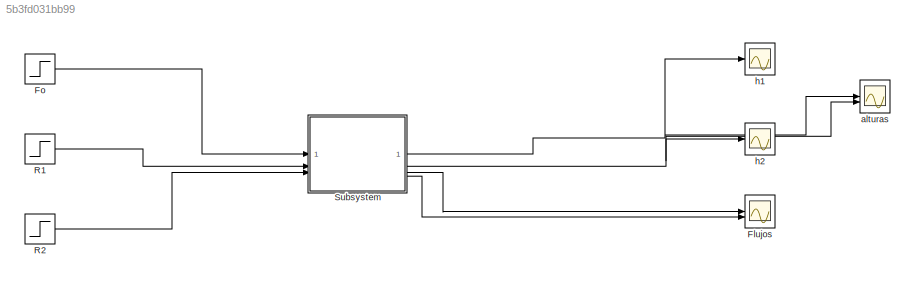
MODEL slx_5b3fd031bb99
KIND model
CONFIG AbsTol = auto
CONFIG EnableMultiTasking = off
CONFIG FixedStep = auto
CONFIG MaxStep = auto
CONFIG MinStep = auto
CONFIG RelTol = 1e-3
CONFIG SampleTimeConstraint = Unconstrained
CONFIG SolverName = VariableStepAuto
CONFIG StartTime = 0.0
CONFIG StopTime = 200
BLOCK [Scope] Flujos
  Floating = off
  NumInputPorts = 2
  ScopeSpecificationString = Simulink.scopes.TimeScopeBlockCfg('CurrentConfiguration', extmgr.ConfigurationSet(extmgr.Configuration('Core','General UI',true),extmgr.Configuration('Core','Source UI',true),extmgr.Configuration('Sources','WiredSimulink',true),extmgr.Configuration('Visuals','Time Domain',true,'SerializedDisplays',{struct('MinYLimReal','-0.79167','MaxYLimReal','7.125','YLabelReal','','MinYLimMag','0.00000','MaxYLi...<+1950ch>
BLOCK [Step] Fo
  SampleTime = 0
BLOCK [Step] R1
  SampleTime = 0
  Time = 20
BLOCK [Step] R2
  SampleTime = 0
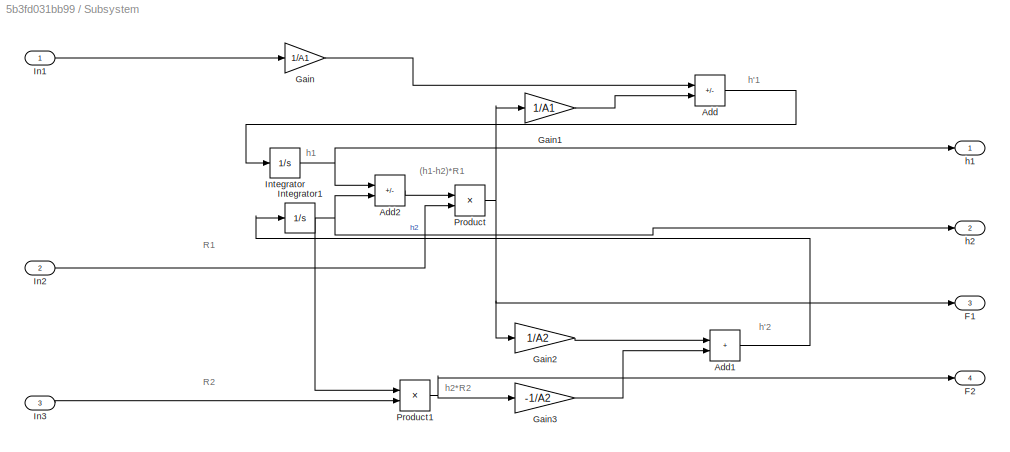
BLOCK [SubSystem] Subsystem
BLOCK [Sum] Subsystem/Add
  IconShape = rectangular
  Inputs = +-
BLOCK [Sum] Subsystem/Add1
  IconShape = rectangular
BLOCK [Sum] Subsystem/Add2
  IconShape = rectangular
  Inputs = +-
BLOCK [Outport] Subsystem/F1
  Port = 3
BLOCK [Outport] Subsystem/F2
  Port = 4
BLOCK [Gain] Subsystem/Gain
  Gain = 1/A1
BLOCK [Gain] Subsystem/Gain1
  Gain = 1/A1
BLOCK [Gain] Subsystem/Gain2
  Gain = 1/A2
BLOCK [Gain] Subsystem/Gain3
  Gain = -1/A2
BLOCK [Inport] Subsystem/In1
BLOCK [Inport] Subsystem/In2
  Port = 2
BLOCK [Inport] Subsystem/In3
  Port = 3
BLOCK [Integrator] Subsystem/Integrator
BLOCK [Integrator] Subsystem/Integrator1
BLOCK [Product] Subsystem/Product
BLOCK [Product] Subsystem/Product1
BLOCK [Outport] Subsystem/h1
BLOCK [Outport] Subsystem/h2
  Port = 2
BLOCK [Scope] alturas
  Floating = off
  NumInputPorts = 2
  ScopeSpecificationString = Simulink.scopes.TimeScopeBlockCfg('CurrentConfiguration', extmgr.ConfigurationSet(extmgr.Configuration('Core','General UI',true),extmgr.Configuration('Core','Source UI',true),extmgr.Configuration('Sources','WiredSimulink',true,'DataLoggingVariableName','estanques','DataLogging',true),extmgr.Configuration('Visuals','Time Domain',true,'SerializedDisplays',{struct('MinYLimReal','-0.79167','MaxYLimRea...<+2010ch>
BLOCK [Scope] h1
  Floating = off
  NumInputPorts = 1
  ScopeSpecificationString = Simulink.scopes.TimeScopeBlockCfg('CurrentConfiguration', extmgr.ConfigurationSet(extmgr.Configuration('Core','General UI',true),extmgr.Configuration('Core','Source UI',true),extmgr.Configuration('Sources','WiredSimulink',true,'DataLogging',true,'DataLoggingVariableName','h1','DataLoggingSaveFormat','Array'),extmgr.Configuration('Visuals','Time Domain',true,'SerializedDisplays',{struct('MinYLimRea...<+1437ch>
BLOCK [Scope] h2
  Floating = off
  NumInputPorts = 1
  ScopeSpecificationString = Simulink.scopes.TimeScopeBlockCfg('CurrentConfiguration', extmgr.ConfigurationSet(extmgr.Configuration('Core','General UI',true),extmgr.Configuration('Core','Source UI',true),extmgr.Configuration('Sources','WiredSimulink',true,'DataLoggingVariableName','h2','DataLogging',true,'DataLoggingSaveFormat','Array'),extmgr.Configuration('Visuals','Time Domain',true,'SerializedDisplays',{struct('MinYLimRea...<+1445ch>
ANNOTATION Subsystem: (h1-h2)*R1
ANNOTATION Subsystem: R1
ANNOTATION Subsystem: R2
ANNOTATION Subsystem: h'1
ANNOTATION Subsystem: h'2
ANNOTATION Subsystem: h1
ANNOTATION Subsystem: h2*R2
LINE Fo:1 -> Subsystem:1
LINE R1:1 -> Subsystem:2
LINE R2:1 -> Subsystem:3
LINE Subsystem/Add1:1 -> Subsystem/Integrator1:1
LINE Subsystem/Add2:1 -> Subsystem/Product:1
LINE Subsystem/Add:1 -> Subsystem/Integrator:1
LINE Subsystem/Gain1:1 -> Subsystem/Add:2
LINE Subsystem/Gain2:1 -> Subsystem/Add1:1
LINE Subsystem/Gain3:1 -> Subsystem/Add1:2
LINE Subsystem/Gain:1 -> Subsystem/Add:1
LINE Subsystem/In1:1 -> Subsystem/Gain:1
LINE Subsystem/In2:1 -> Subsystem/Product:2
LINE Subsystem/In3:1 -> Subsystem/Product1:2
NET Subsystem/Integrator1:1 -> Subsystem/Add2:2, Subsystem/Product1:1, Subsystem/h2:1
NET Subsystem/Integrator:1 -> Subsystem/Add2:1, Subsystem/h1:1
NET Subsystem/Product1:1 -> Subsystem/F2:1, Subsystem/Gain3:1
NET Subsystem/Product:1 -> Subsystem/F1:1, Subsystem/Gain1:1, Subsystem/Gain2:1
NET Subsystem:1 -> alturas:1, h1:1
NET Subsystem:2 -> alturas:2, h2:1
LINE Subsystem:3 -> Flujos:1
LINE Subsystem:4 -> Flujos:2
note: NET lines group one-source signal fan-out (src -> all destinations, sorted); 1:1 wires keep LINE
